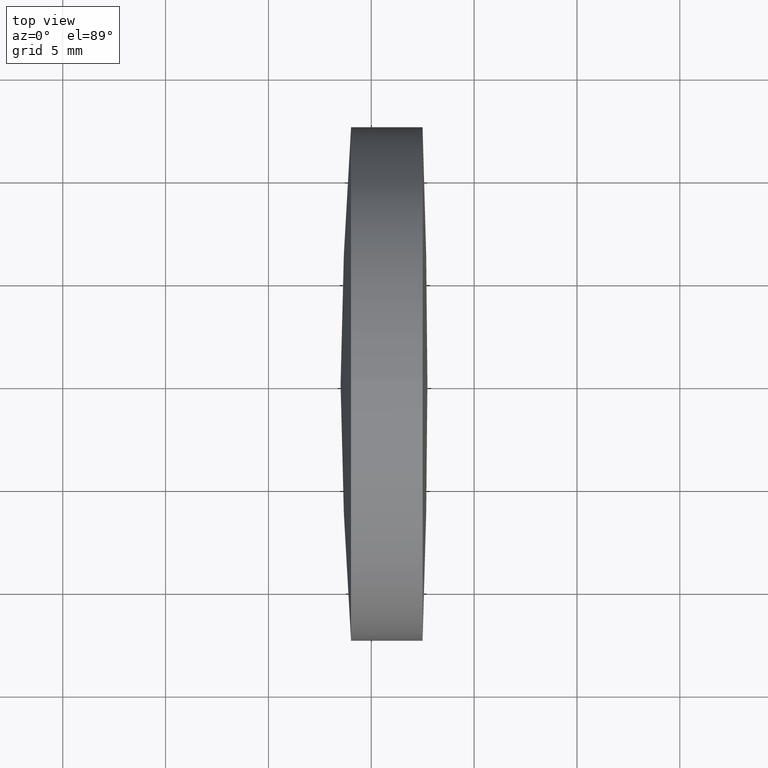
[diagram: clean part render]
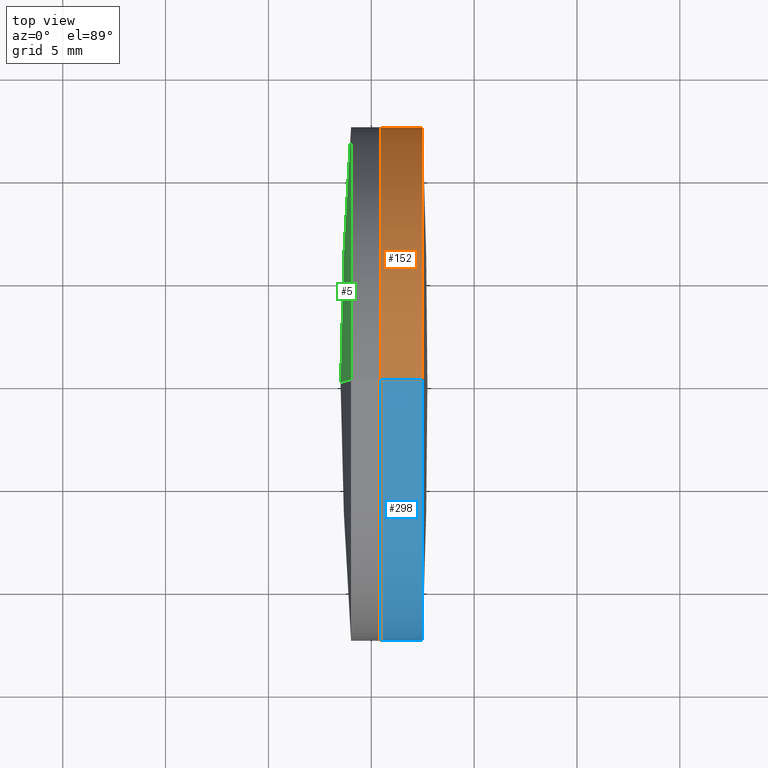
[diagram: same view with three faces highlighted in distinct colors, each labeled with its STEP entity id]
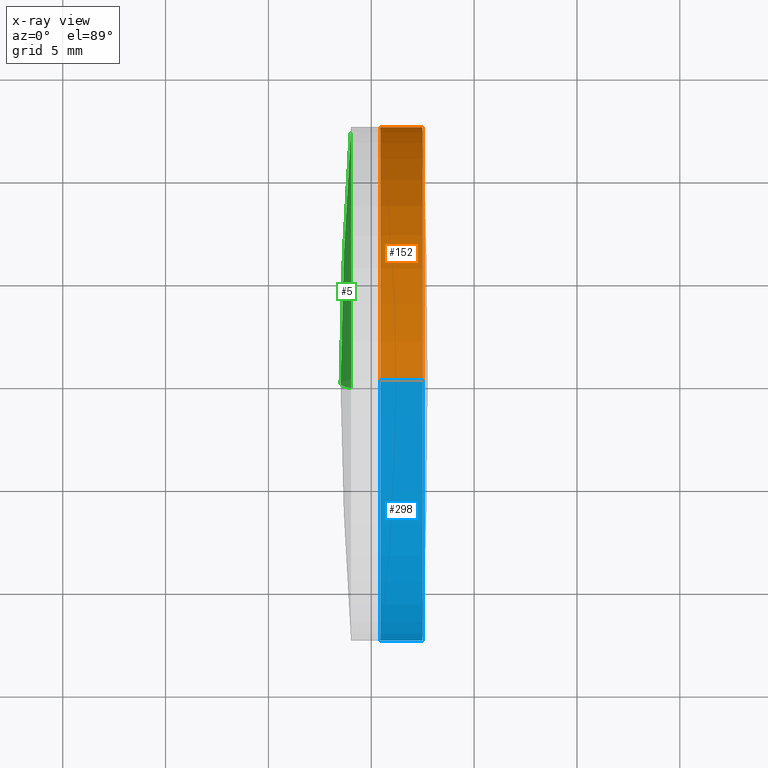
[diagram: x-ray of the same camera — body ghosted, the three highlighted faces saturated]
A machine part, top view with three faces highlighted in distinct colors.
The next image is the same camera in x-ray (body ghosted, the three faces saturated) — at least one of them is partly hidden behind the body in this view.
Their STEP definitions:

[orange] entity #152 — the highlighted cylindrical surface (partial cylindrical patch) has radius 12.5 mm, axis along (-1, -0, -0).
#14 = VECTOR ( 'NONE', #54, 1000.000000000000000 ) ;
#20 = CARTESIAN_POINT ( 'NONE',  ( 117.4941239712516400, 0.0000000000000000000, 0.0000000000000000000 ) ) ;
#21 = CARTESIAN_POINT ( 'NONE',  ( 115.4447867878546400, 0.0000000000000000000, 12.49999999999999300 ) ) ;
#23 = AXIS2_PLACEMENT_3D ( 'NONE', #20, #296, #322 ) ;
#24 = VERTEX_POINT ( 'NONE', #256 ) ;
#26 = CARTESIAN_POINT ( 'NONE',  ( 115.4447867878546400, 0.0000000000000000000, 0.0000000000000000000 ) ) ;
#35 = CYLINDRICAL_SURFACE ( 'NONE', #56, 12.49999999999996600 ) ;
#38 = VERTEX_POINT ( 'NONE', #155 ) ;
#43 = ORIENTED_EDGE ( 'NONE', *, *, #70, .T. ) ;
#52 = EDGE_CURVE ( 'NONE', #38, #264, #102, .T. ) ;
#54 = DIRECTION ( 'NONE',  ( -1.000000000000000000, -0.0000000000000000000, -0.0000000000000000000 ) ) ;
#56 = AXIS2_PLACEMENT_3D ( 'NONE', #71, #64, #99 ) ;
#64 = DIRECTION ( 'NONE',  ( -1.000000000000000000, -0.0000000000000000000, -0.0000000000000000000 ) ) ;
#70 = EDGE_CURVE ( 'NONE', #264, #24, #103, .T. ) ;
#71 = CARTESIAN_POINT ( 'NONE',  ( -0.5519199926577972300, 0.0000000000000000000, 0.0000000000000000000 ) ) ;
#98 = DIRECTION ( 'NONE',  ( -1.000000000000000000, -0.0000000000000000000, -0.0000000000000000000 ) ) ;
#99 = DIRECTION ( 'NONE',  ( 0.0000000000000000000, 0.0000000000000000000, 1.000000000000000000 ) ) ;
#102 = CIRCLE ( 'NONE', #23, 12.49999999999995000 ) ;
#103 = LINE ( 'NONE', #291, #14 ) ;
#112 = FACE_OUTER_BOUND ( 'NONE', #126, .T. ) ;
#116 = DIRECTION ( 'NONE',  ( 0.0000000000000000000, 0.0000000000000000000, 1.000000000000000000 ) ) ;
#125 = ORIENTED_EDGE ( 'NONE', *, *, #137, .F. ) ;
#126 = EDGE_LOOP ( 'NONE', ( #259, #43, #125, #261 ) ) ;
#137 = EDGE_CURVE ( 'NONE', #216, #24, #213, .T. ) ;
#142 = EDGE_CURVE ( 'NONE', #38, #216, #314, .T. ) ;
#152 = ADVANCED_FACE ( 'NONE', ( #112 ), #35, .T. ) ;
#155 = CARTESIAN_POINT ( 'NONE',  ( 117.4941239712516400, 0.0000000000000000000, 12.49999999999995000 ) ) ;
#185 = CARTESIAN_POINT ( 'NONE',  ( 117.4941239712516400, 1.530808498934186400E-015, -12.49999999999995000 ) ) ;
#213 = CIRCLE ( 'NONE', #233, 12.49999999999998400 ) ;
#216 = VERTEX_POINT ( 'NONE', #21 ) ;
#233 = AXIS2_PLACEMENT_3D ( 'NONE', #26, #98, #116 ) ;
#256 = CARTESIAN_POINT ( 'NONE',  ( 115.4447867878546400, 1.530808498934190500E-015, -12.49999999999999300 ) ) ;
#259 = ORIENTED_EDGE ( 'NONE', *, *, #52, .T. ) ;
#261 = ORIENTED_EDGE ( 'NONE', *, *, #142, .F. ) ;
#263 = VECTOR ( 'NONE', #337, 1000.000000000000000 ) ;
#264 = VERTEX_POINT ( 'NONE', #185 ) ;
#291 = CARTESIAN_POINT ( 'NONE',  ( -0.5519199926577972300, 1.530808498934187400E-015, -12.49999999999996600 ) ) ;
#296 = DIRECTION ( 'NONE',  ( -1.000000000000000000, -0.0000000000000000000, -0.0000000000000000000 ) ) ;
#314 = LINE ( 'NONE', #324, #263 ) ;
#322 = DIRECTION ( 'NONE',  ( 0.0000000000000000000, 0.0000000000000000000, 1.000000000000000000 ) ) ;
#324 = CARTESIAN_POINT ( 'NONE',  ( -0.5519199926577972300, 0.0000000000000000000, 12.49999999999996600 ) ) ;
#337 = DIRECTION ( 'NONE',  ( -1.000000000000000000, -0.0000000000000000000, -0.0000000000000000000 ) ) ;

[blue] entity #298 — the highlighted cylindrical surface (partial cylindrical patch) has radius 12.5 mm, axis along (-1, -0, -0).
#14 = VECTOR ( 'NONE', #54, 1000.000000000000000 ) ;
#21 = CARTESIAN_POINT ( 'NONE',  ( 115.4447867878546400, 0.0000000000000000000, 12.49999999999999300 ) ) ;
#24 = VERTEX_POINT ( 'NONE', #256 ) ;
#38 = VERTEX_POINT ( 'NONE', #155 ) ;
#54 = DIRECTION ( 'NONE',  ( -1.000000000000000000, -0.0000000000000000000, -0.0000000000000000000 ) ) ;
#65 = DIRECTION ( 'NONE',  ( 0.0000000000000000000, 0.0000000000000000000, 1.000000000000000000 ) ) ;
#69 = DIRECTION ( 'NONE',  ( 0.0000000000000000000, 0.0000000000000000000, 1.000000000000000000 ) ) ;
#70 = EDGE_CURVE ( 'NONE', #264, #24, #103, .T. ) ;
#81 = CARTESIAN_POINT ( 'NONE',  ( 115.4447867878546400, 0.0000000000000000000, 0.0000000000000000000 ) ) ;
#103 = LINE ( 'NONE', #291, #14 ) ;
#105 = EDGE_CURVE ( 'NONE', #24, #216, #308, .T. ) ;
#110 = DIRECTION ( 'NONE',  ( 0.0000000000000000000, 0.0000000000000000000, 1.000000000000000000 ) ) ;
#142 = EDGE_CURVE ( 'NONE', #38, #216, #314, .T. ) ;
#145 = CARTESIAN_POINT ( 'NONE',  ( -0.5519199926577972300, 0.0000000000000000000, 0.0000000000000000000 ) ) ;
#155 = CARTESIAN_POINT ( 'NONE',  ( 117.4941239712516400, 0.0000000000000000000, 12.49999999999995000 ) ) ;
#175 = CARTESIAN_POINT ( 'NONE',  ( 117.4941239712516400, 0.0000000000000000000, 0.0000000000000000000 ) ) ;
#178 = AXIS2_PLACEMENT_3D ( 'NONE', #81, #295, #65 ) ;
#181 = FACE_OUTER_BOUND ( 'NONE', #217, .T. ) ;
#184 = EDGE_CURVE ( 'NONE', #264, #38, #253, .T. ) ;
#185 = CARTESIAN_POINT ( 'NONE',  ( 117.4941239712516400, 1.530808498934186400E-015, -12.49999999999995000 ) ) ;
#192 = ORIENTED_EDGE ( 'NONE', *, *, #70, .F. ) ;
#196 = DIRECTION ( 'NONE',  ( -1.000000000000000000, -0.0000000000000000000, -0.0000000000000000000 ) ) ;
#202 = CYLINDRICAL_SURFACE ( 'NONE', #311, 12.49999999999996600 ) ;
#216 = VERTEX_POINT ( 'NONE', #21 ) ;
#217 = EDGE_LOOP ( 'NONE', ( #192, #273, #279, #229 ) ) ;
#222 = AXIS2_PLACEMENT_3D ( 'NONE', #175, #196, #110 ) ;
#229 = ORIENTED_EDGE ( 'NONE', *, *, #105, .F. ) ;
#253 = CIRCLE ( 'NONE', #222, 12.49999999999995000 ) ;
#256 = CARTESIAN_POINT ( 'NONE',  ( 115.4447867878546400, 1.530808498934190500E-015, -12.49999999999999300 ) ) ;
#263 = VECTOR ( 'NONE', #337, 1000.000000000000000 ) ;
#264 = VERTEX_POINT ( 'NONE', #185 ) ;
#266 = DIRECTION ( 'NONE',  ( -1.000000000000000000, -0.0000000000000000000, -0.0000000000000000000 ) ) ;
#273 = ORIENTED_EDGE ( 'NONE', *, *, #184, .T. ) ;
#279 = ORIENTED_EDGE ( 'NONE', *, *, #142, .T. ) ;
#291 = CARTESIAN_POINT ( 'NONE',  ( -0.5519199926577972300, 1.530808498934187400E-015, -12.49999999999996600 ) ) ;
#295 = DIRECTION ( 'NONE',  ( -1.000000000000000000, -0.0000000000000000000, -0.0000000000000000000 ) ) ;
#298 = ADVANCED_FACE ( 'NONE', ( #181 ), #202, .T. ) ;
#308 = CIRCLE ( 'NONE', #178, 12.49999999999998400 ) ;
#311 = AXIS2_PLACEMENT_3D ( 'NONE', #145, #266, #69 ) ;
#314 = LINE ( 'NONE', #324, #263 ) ;
#324 = CARTESIAN_POINT ( 'NONE',  ( -0.5519199926577972300, 0.0000000000000000000, 12.49999999999996600 ) ) ;
#337 = DIRECTION ( 'NONE',  ( -1.000000000000000000, -0.0000000000000000000, -0.0000000000000000000 ) ) ;

[green] entity #5 — the highlighted spherical surface has radius 153.832 mm.
#5 = ADVANCED_FACE ( 'NONE', ( #166 ), #158, .T. ) ;
#9 = DIRECTION ( 'NONE',  ( 0.0000000000000000000, 0.0000000000000000000, -1.000000000000000000 ) ) ;
#31 = DIRECTION ( 'NONE',  ( 0.0000000000000000000, 1.000000000000000000, 0.0000000000000000000 ) ) ;
#32 = AXIS2_PLACEMENT_3D ( 'NONE', #61, #164, #9 ) ;
#45 = AXIS2_PLACEMENT_3D ( 'NONE', #334, #31, #277 ) ;
#49 = ORIENTED_EDGE ( 'NONE', *, *, #206, .F. ) ;
#61 = CARTESIAN_POINT ( 'NONE',  ( 267.3406689735747400, 0.0000000000000000000, -9.034551352721274800E-017 ) ) ;
#78 = DIRECTION ( 'NONE',  ( -1.000000000000000000, -0.0000000000000000000, -0.0000000000000000000 ) ) ;
#97 = CARTESIAN_POINT ( 'NONE',  ( 267.3406689735747400, 0.0000000000000000000, -9.034551352721274800E-017 ) ) ;
#114 = DIRECTION ( 'NONE',  ( 0.0000000000000000000, -1.224646799147353500E-016, 1.000000000000000000 ) ) ;
#121 = EDGE_CURVE ( 'NONE', #228, #343, #133, .T. ) ;
#128 = CIRCLE ( 'NONE', #161, 153.8320000000000200 ) ;
#133 = CIRCLE ( 'NONE', #317, 12.50000000000000000 ) ;
#158 = SPHERICAL_SURFACE ( 'NONE', #45, 153.8320000000000200 ) ;
#161 = AXIS2_PLACEMENT_3D ( 'NONE', #97, #168, #114 ) ;
#164 = DIRECTION ( 'NONE',  ( 0.0000000000000000000, -1.000000000000000000, 0.0000000000000000000 ) ) ;
#166 = FACE_OUTER_BOUND ( 'NONE', #255, .T. ) ;
#168 = DIRECTION ( 'NONE',  ( -0.0000000000000000000, 1.000000000000000000, 1.224646799147353200E-016 ) ) ;
#186 = CARTESIAN_POINT ( 'NONE',  ( 114.0173692960632100, 1.530808498934200400E-015, -12.50000000000007300 ) ) ;
#206 = EDGE_CURVE ( 'NONE', #228, #329, #242, .T. ) ;
#220 = CARTESIAN_POINT ( 'NONE',  ( 114.0173692960632100, 0.0000000000000000000, 0.0000000000000000000 ) ) ;
#226 = ORIENTED_EDGE ( 'NONE', *, *, #121, .T. ) ;
#228 = VERTEX_POINT ( 'NONE', #269 ) ;
#232 = EDGE_CURVE ( 'NONE', #343, #329, #128, .T. ) ;
#242 = CIRCLE ( 'NONE', #32, 153.8320000000000200 ) ;
#255 = EDGE_LOOP ( 'NONE', ( #226, #292, #49 ) ) ;
#269 = CARTESIAN_POINT ( 'NONE',  ( 114.0173692960632100, 0.0000000000000000000, 12.50000000000007300 ) ) ;
#275 = DIRECTION ( 'NONE',  ( 0.0000000000000000000, 0.0000000000000000000, 1.000000000000000000 ) ) ;
#277 = DIRECTION ( 'NONE',  ( 0.0000000000000000000, 0.0000000000000000000, 1.000000000000000000 ) ) ;
#282 = CARTESIAN_POINT ( 'NONE',  ( 113.5086689735747000, 0.0000000000000000000, 9.329147806794571100E-015 ) ) ;
#292 = ORIENTED_EDGE ( 'NONE', *, *, #232, .T. ) ;
#317 = AXIS2_PLACEMENT_3D ( 'NONE', #220, #78, #275 ) ;
#329 = VERTEX_POINT ( 'NONE', #282 ) ;
#334 = CARTESIAN_POINT ( 'NONE',  ( 267.3406689735747400, 0.0000000000000000000, -9.034551352721274800E-017 ) ) ;
#343 = VERTEX_POINT ( 'NONE', #186 ) ;